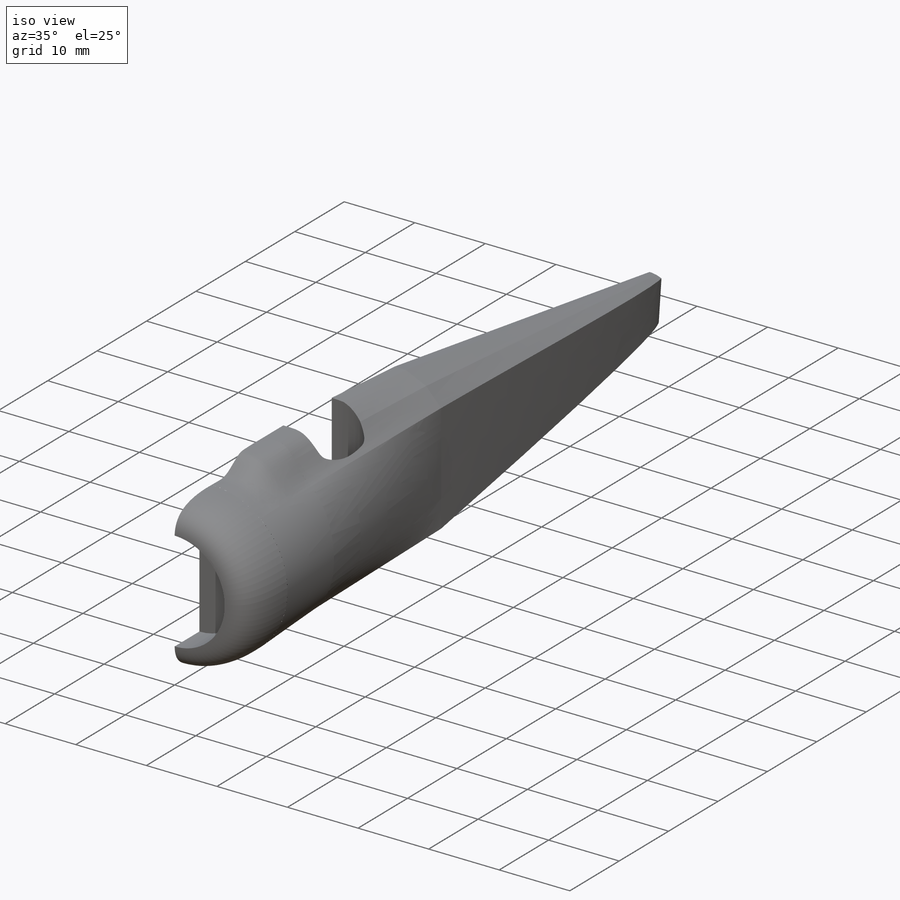
[diagram: iso view]
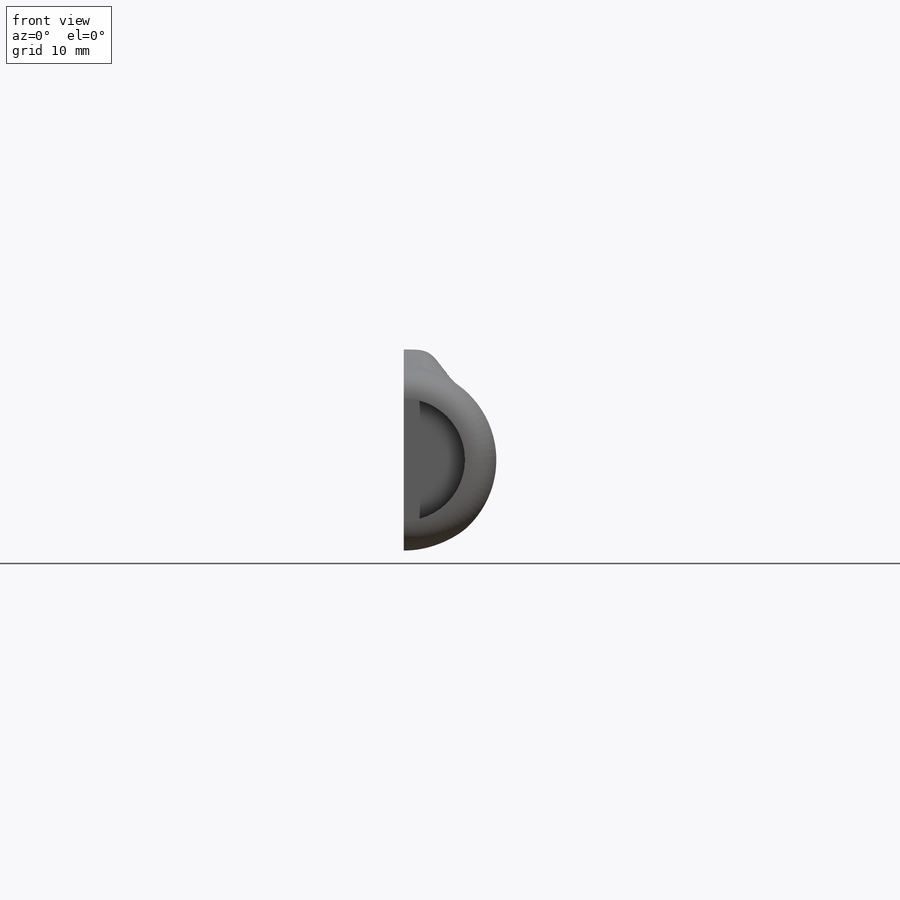
[diagram: front view]
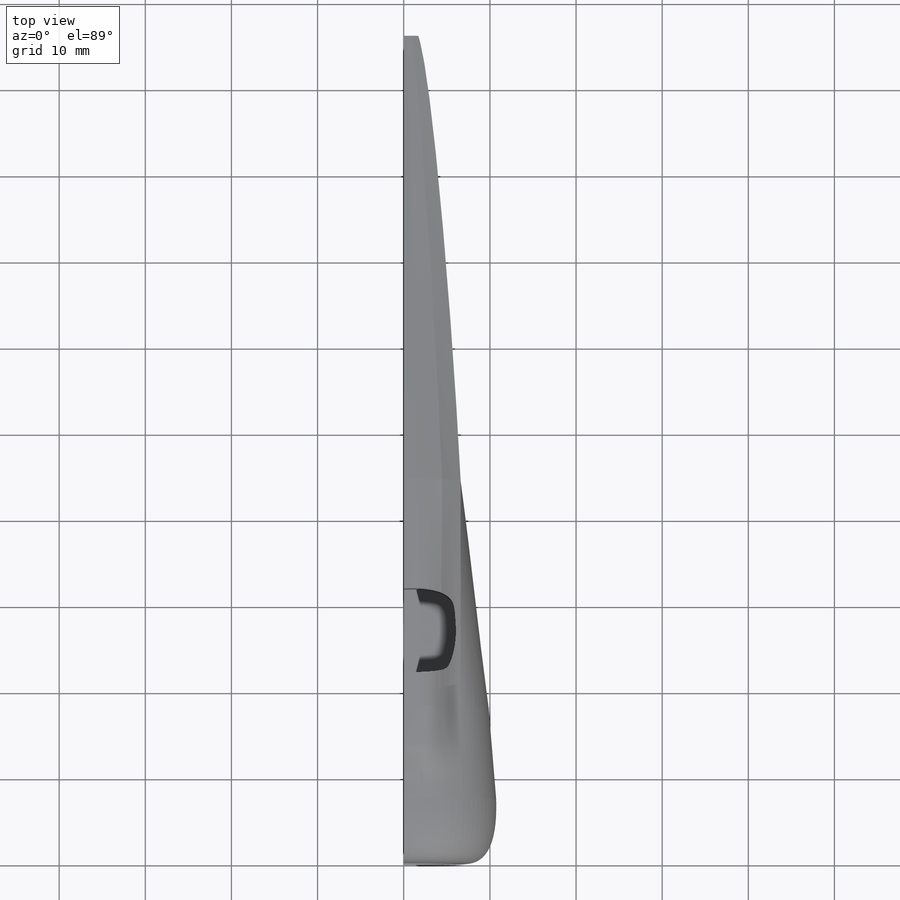
[diagram: top view]
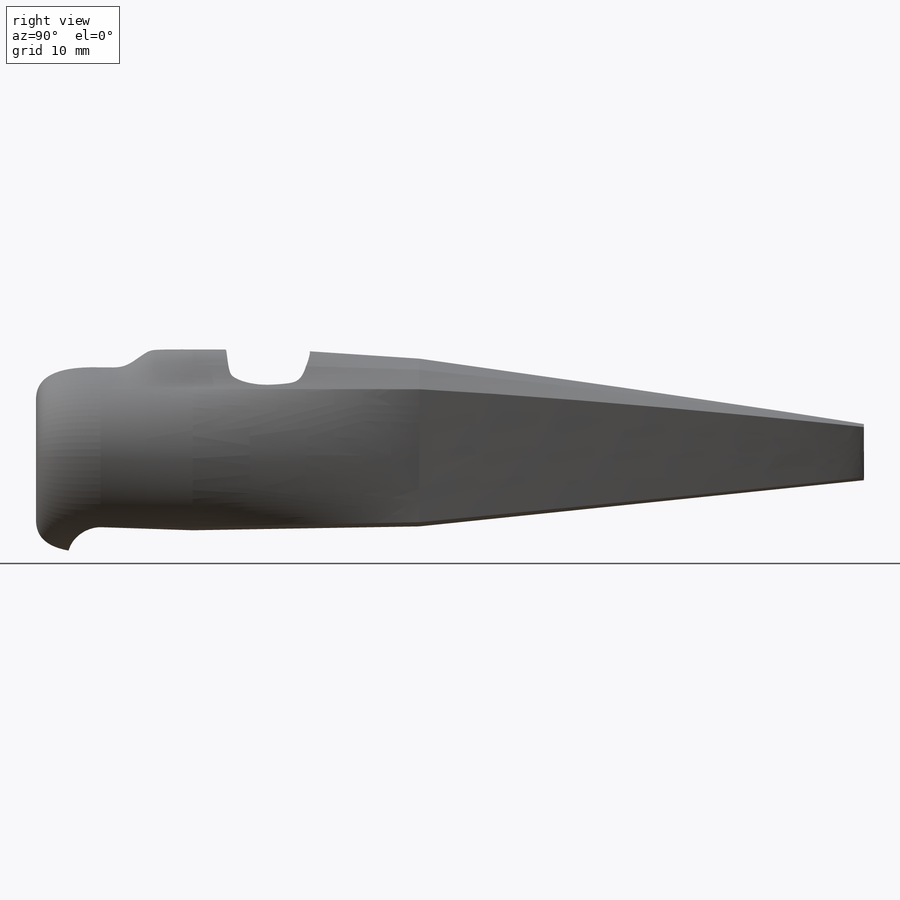
[diagram: right view]
SOLIDWORKS PART (.sldprt)
format: sldprt  version: not decoded by parser v0  size: 3,985,408 bytes
history: native  units: mm
features: sketch x32, plane x12, cut_extrude x3, material x1, revolve x1 (+13 scaffold rows collapsed)
feature tree (62):
  scaffold x13  (default folders/planes/origin — collapsed)
  material  "Material <not specified>"
  sketch  "Avstånd ref"  dims[D1=110.0mm]
  sketch  "Right bild"
  sketch  "Top bild"
  sketch  "Front bild"
  sketch  "Sketch6"
  plane  "Fästpunkt A Y led"  Offset=44.5mm
  plane  "Fästpunkt A X led"  Offset=8.2mm
  plane  "Fästpunkt A Z led"  Offset=6.6mm
  plane  "Fästpunkt B Y led"  Offset=96.1mm
  plane  "Fästpunkt B X led"  Offset=3.8mm
  plane  "Fästpunkt B Z led"  Offset=1.7mm
  sketch  "3DSketch1"
  sketch  "3DSketch2"
  sketch  "3DSketch4"
  sketch  "Sketch9"  dims[D1=6.6mm]
  sketch  "Sketch10"  dims[c1.D1=2.06mm c1.D2=2.06mm c1.D3=1.0106mm c2.D1=~3.108738mm]
  sketch  "Sketch11"
  sketch  "Sketch12"
  sketch  "Sketch13"
  sketch  "Sketch14"
  sketch  "3DSketch5"
  plane  "Fästpunkt C Y led"  Offset=31.8mm
  plane  "Fästpunkt C X led"  Offset=12.6mm
  plane  "Fästpunkt D Y led"  Offset=18.2mm
  sketch  "3DSketch6"
  sketch  "Sketch19"
  sketch  "Sketch20"
  sketch  "Sketch21"
  plane  "Plane11"  Offset=8.7mm
  sketch  "3DSketch8"
  sketch  "Sketch22"
  plane  "Plane12"  Offset=13mm
  sketch  "Sketch23"
  sketch  "Sketch24"
  sketch  "Sketch25"
  cut_extrude  "CX cockpit"  Depth=10mm
  plane  "Fästpunkt E Y led"  Offset=7.5mm
  sketch  "Sketch31"
  sketch  "Sketch33"
  revolve  "Revolve2"  Angle=180deg
  sketch  "Sketch34"
  cut_extrude  "Cut-Extrude10"  Depth=5mm
  sketch  "Sketch35"
  cut_extrude  "Cut-Extrude11"  [1 undecoded]
  sketch  "3DSketch11"
  sketch  "Sketch37"
  sketch  "3DSketch12"
  sketch  "Sketch38"
decode coverage: 6 of 36 modeling features carry decoded parameters
note: ~ marks probable driven/reference dimensions
note: 1 parameter value undecoded
note: suppression state not decoded; provenance and decode notes live in map.json
